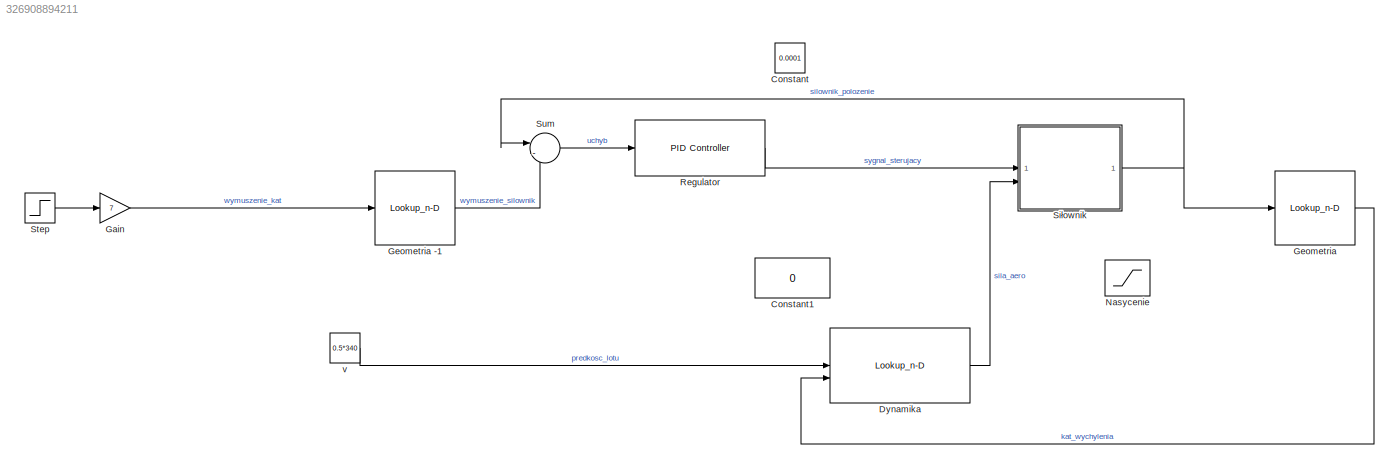
MODEL slx_326908894211
KIND model
CONFIG AbsTol = auto
CONFIG EnableMultiTasking = off
CONFIG FixedStep = 0.0001
CONFIG MaxStep = auto
CONFIG MinStep = auto
CONFIG RelTol = 1e-3
CONFIG SampleTimeConstraint = Unconstrained
CONFIG SolverName = ode4
CONFIG StartTime = 0.0
CONFIG StopTime = 40
BLOCK [Constant] Constant
  Value = 0.0001
BLOCK [Constant] Constant1
  Value = 0
BLOCK [Lookup_n-D] Dynamika
  BreakpointsForDimension1 = V
  BreakpointsForDimension2 = delta_dyn
  InputPortMap = u0,u1
  InternalRulePriority = Speed
  RndMeth = Simplest
  Table = Q
BLOCK [Gain] Gain
  Gain = 7
BLOCK [Lookup_n-D] Geometria
  BreakpointsForDimension1 = flip(delta_h)
  InputPortMap = u0
  InternalRulePriority = Speed
  NumberOfTableDimensions = 1
  RndMeth = Simplest
  Table = flip(delta)
BLOCK [Lookup_n-D] Geometria -1
  BreakpointsForDimension1 = delta
  InputPortMap = u0
  InternalRulePriority = Speed
  NumberOfTableDimensions = 1
  RndMeth = Simplest
  Table = delta_h
BLOCK [Saturate] Nasycenie
  LowerLimit = min(delta_h)
  UpperLimit = max(delta_h)
BLOCK [Reference] Regulator  REF=slpidlib/PID Controller
  LibrarySourceBlock = simulink/Continuous/PID Controller
  SourceBlock = slpidlib/PID Controller
  SourceType = PID 1dof
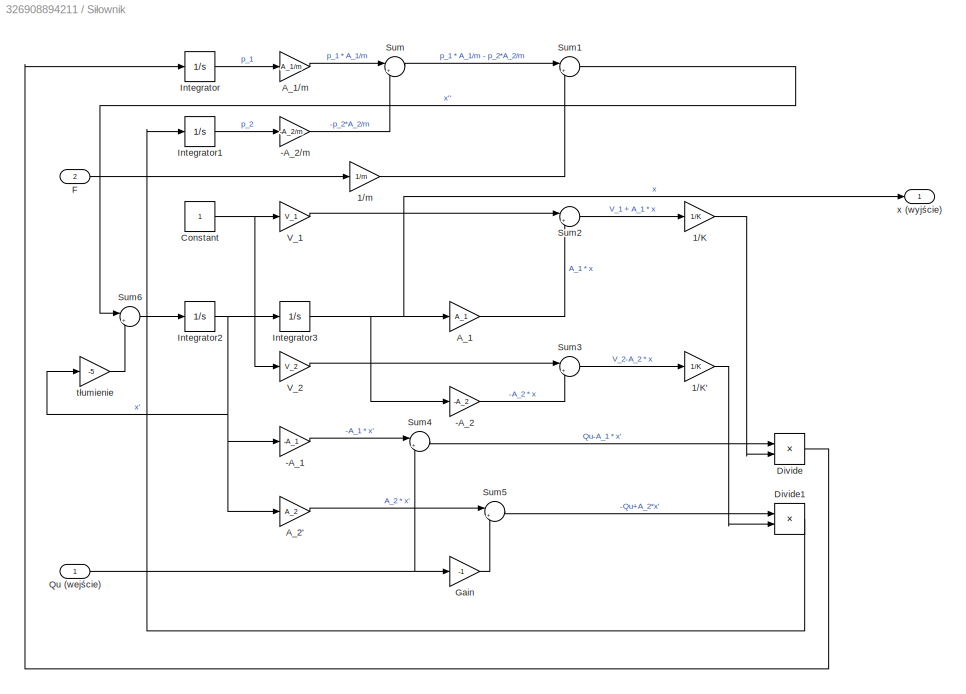
BLOCK [SubSystem] Siłownik
BLOCK [Gain] Siłownik/-A_1
  Gain = -A_1
BLOCK [Gain] Siłownik/-A_2
  Gain = -A_2
BLOCK [Gain] Siłownik/-A_2//m
  Gain = -A_2/m
BLOCK [Gain] Siłownik/1//K
  Gain = 1/K
BLOCK [Gain] Siłownik/1//K'
  Gain = 1/K
BLOCK [Gain] Siłownik/1//m
  Gain = 1/m
BLOCK [Gain] Siłownik/A_1
  Gain = A_1
BLOCK [Gain] Siłownik/A_1//m
  Gain = A_1/m
BLOCK [Gain] Siłownik/A_2'
  Gain = A_2
BLOCK [Constant] Siłownik/Constant
BLOCK [Product] Siłownik/Divide
  Inputs = */
BLOCK [Product] Siłownik/Divide1
  Inputs = */
BLOCK [Inport] Siłownik/F
  Port = 2
BLOCK [Gain] Siłownik/Gain
  Gain = -1
BLOCK [Integrator] Siłownik/Integrator
  InitialCondition = p_01
BLOCK [Integrator] Siłownik/Integrator1
  InitialCondition = p_02
BLOCK [Integrator] Siłownik/Integrator2
  InitialCondition = xp_0
BLOCK [Integrator] Siłownik/Integrator3
  InitialCondition = x_0
BLOCK [Inport] Siłownik/Qu (wejście)
BLOCK [Sum] Siłownik/Sum
  Inputs = |++
BLOCK [Sum] Siłownik/Sum1
  Inputs = |++
BLOCK [Sum] Siłownik/Sum2
  Inputs = |++
BLOCK [Sum] Siłownik/Sum3
  Inputs = |++
BLOCK [Sum] Siłownik/Sum4
  Inputs = |++
BLOCK [Sum] Siłownik/Sum5
  Inputs = |++
BLOCK [Sum] Siłownik/Sum6
  Inputs = |++
BLOCK [Gain] Siłownik/V_1
  Gain = V_1
BLOCK [Gain] Siłownik/V_2
  Gain = V_2
BLOCK [Gain] Siłownik/tłumienie
  Gain = -5
BLOCK [Outport] Siłownik/x (wyjście)
BLOCK [Step] Step
  SampleTime = 0
BLOCK [Sum] Sum
  Inputs = |-+
  NameLocation = top
BLOCK [Constant] v
  Value = 0.5*340
LINE Dynamika:1 -> Siłownik:2
LINE Gain:1 -> Geometria -1:1
LINE Geometria -1:1 -> Sum:2
LINE Geometria:1 -> Dynamika:2
LINE Regulator:1 -> Siłownik:1
LINE Siłownik/-A_1:1 -> Siłownik/Sum4:1
LINE Siłownik/-A_2//m:1 -> Siłownik/Sum:2
LINE Siłownik/-A_2:1 -> Siłownik/Sum3:2
LINE Siłownik/1//K':1 -> Siłownik/Divide1:2
LINE Siłownik/1//K:1 -> Siłownik/Divide:2
LINE Siłownik/1//m:1 -> Siłownik/Sum1:2
LINE Siłownik/A_1//m:1 -> Siłownik/Sum:1
LINE Siłownik/A_1:1 -> Siłownik/Sum2:2
LINE Siłownik/A_2':1 -> Siłownik/Sum5:1
NET Siłownik/Constant:1 -> Siłownik/V_1:1, Siłownik/V_2:1
LINE Siłownik/Divide1:1 -> Siłownik/Integrator1:1
LINE Siłownik/Divide:1 -> Siłownik/Integrator:1
LINE Siłownik/F:1 -> Siłownik/1//m:1
LINE Siłownik/Gain:1 -> Siłownik/Sum5:2
LINE Siłownik/Integrator1:1 -> Siłownik/-A_2//m:1
NET Siłownik/Integrator2:1 -> Siłownik/-A_1:1, Siłownik/A_2':1, Siłownik/Integrator3:1, Siłownik/tłumienie:1
NET Siłownik/Integrator3:1 -> Siłownik/-A_2:1, Siłownik/A_1:1, Siłownik/x (wyjście):1
LINE Siłownik/Integrator:1 -> Siłownik/A_1//m:1
NET Siłownik/Qu (wejście):1 -> Siłownik/Gain:1, Siłownik/Sum4:2
LINE Siłownik/Sum1:1 -> Siłownik/Sum6:1
LINE Siłownik/Sum2:1 -> Siłownik/1//K:1
LINE Siłownik/Sum3:1 -> Siłownik/1//K':1
LINE Siłownik/Sum4:1 -> Siłownik/Divide:1
LINE Siłownik/Sum5:1 -> Siłownik/Divide1:1
LINE Siłownik/Sum6:1 -> Siłownik/Integrator2:1
LINE Siłownik/Sum:1 -> Siłownik/Sum1:1
LINE Siłownik/V_1:1 -> Siłownik/Sum2:1
LINE Siłownik/V_2:1 -> Siłownik/Sum3:1
LINE Siłownik/tłumienie:1 -> Siłownik/Sum6:2
NET Siłownik:1 -> Geometria:1, Sum:1
LINE Step:1 -> Gain:1
LINE Sum:1 -> Regulator:1
LINE v:1 -> Dynamika:1
note: NET lines group one-source signal fan-out (src -> all destinations, sorted); 1:1 wires keep LINE
